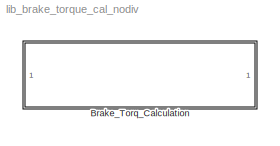
MODEL lib_brake_torque_cal_nodiv
KIND library
CONFIG PostLoadFcn = if exist('tl_postloadfcn','file'), tl_postloadfcn(gcs,101); end
CONFIG PreLoadFcn = if exist('tl_preloadfcn','file'), tl_preloadfcn(gcs,101); end
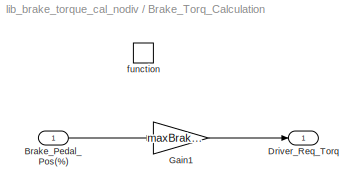
BLOCK [SubSystem] Brake_Torq_Calculation
  FunctionWithSeparateData = off
  MaskHideContents = off
  MinAlgLoopOccurrences = off
  Opaque = off
  Ports = [1, 1, 0, 1]
  PropExecContextOutsideSubsystem = off
  RTWSystemCode = Auto
  RequestExecContextInheritance = off
  SID = 1
  TreatAsAtomicUnit = on
BLOCK [Inport] Brake_Torq_Calculation/Brake_Pedal_Pos(%)
  IconDisplay = Port number
  SID = 2
BLOCK [Outport] Brake_Torq_Calculation/Driver_Req_Torq
  IconDisplay = Port number
  SID = 5
BLOCK [Gain] Brake_Torq_Calculation/Gain1
  Gain = maxBrakeTorque/100
  OutDataTypeStr = Inherit: Inherit via internal rule
  OutMax = 4000
  OutMin = 0
  ParamDataTypeStr = Inherit: Inherit via internal rule
  SID = 6
  SaturateOnIntegerOverflow = off
BLOCK [TriggerPort] Brake_Torq_Calculation/function
  Ports = []
  SID = 3
  TriggerType = function-call
LINE Brake_Torq_Calculation/Brake_Pedal_Pos(%):1 -> Brake_Torq_Calculation/Gain1:1
LINE Brake_Torq_Calculation/Gain1:1 -> Brake_Torq_Calculation/Driver_Req_Torq:1
